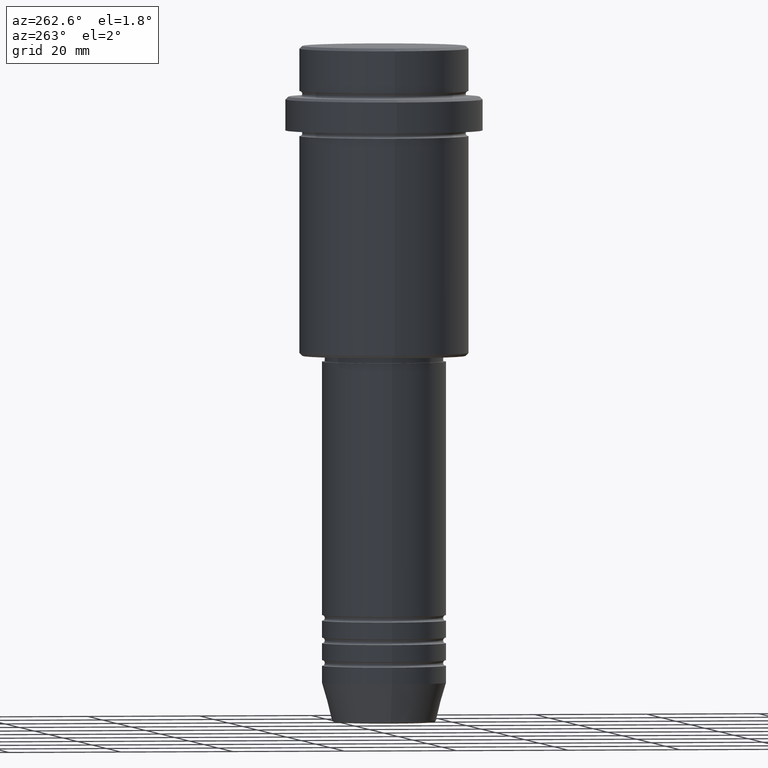
[diagram: clean part render]
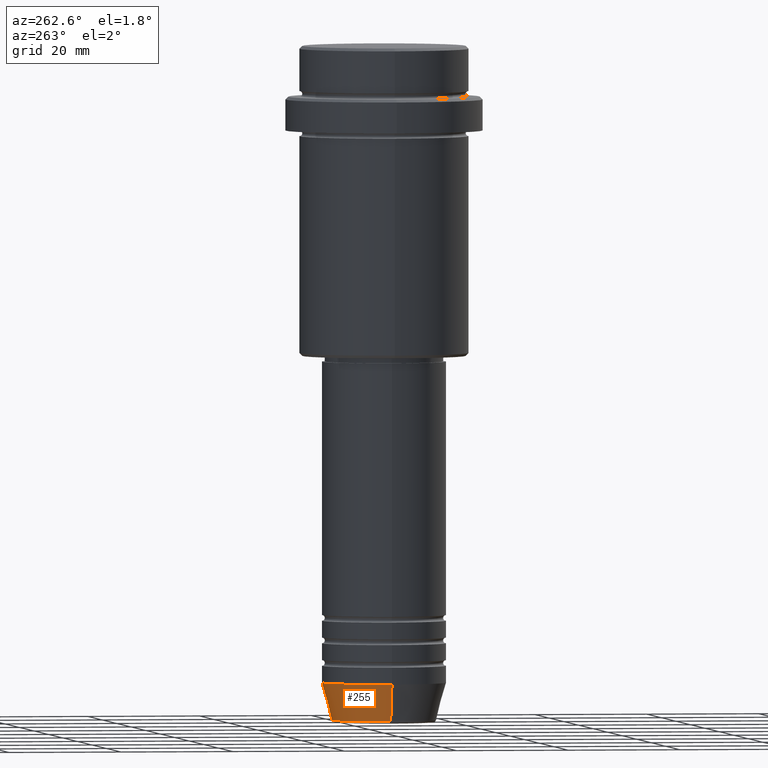
[diagram: same view with one face highlighted and labeled with its STEP entity id]
A machine part, auxiliary view. The second image highlights one B-rep face of the part: STEP entity #255.
In plain terms, the highlighted conical surface has half-angle 15 deg.
Its self-contained STEP definition (entity closure, byte-faithful):
#6 = DIRECTION ( 'NONE',  ( 0.2588190451025213501, 0.000000000000000000, 0.9659258262890680902 ) ) ;
#9 = ORIENTED_EDGE ( 'NONE', *, *, #1183, .F. ) ;
#42 = EDGE_CURVE ( 'NONE', #180, #549, #1190, .T. ) ;
#82 = EDGE_LOOP ( 'NONE', ( #1201, #1222, #9, #689 ) ) ;
#172 = CARTESIAN_POINT ( 'NONE',  ( 11.00000000000000000, 0.000000000000000000, -113.0000000000000000 ) ) ;
#180 = VERTEX_POINT ( 'NONE', #752 ) ;
#206 = CARTESIAN_POINT ( 'NONE',  ( 11.00000000000000000, 0.000000000000000000, -113.0000000000000000 ) ) ;
#231 = DIRECTION ( 'NONE',  ( -0.000000000000000000, -0.000000000000000000, 1.000000000000000000 ) ) ;
#255 = ADVANCED_FACE ( 'NONE', ( #883 ), #318, .T. ) ;
#282 = DIRECTION ( 'NONE',  ( -0.2588190451025213501, 3.169619151431772337E-17, 0.9659258262890680902 ) ) ;
#285 = CARTESIAN_POINT ( 'NONE',  ( 0.000000000000000000, 0.000000000000000000, -113.0000000000000000 ) ) ;
#313 = CARTESIAN_POINT ( 'NONE',  ( 0.000000000000000000, 0.000000000000000000, -119.6294095225512422 ) ) ;
#318 = CONICAL_SURFACE ( 'NONE', #1038, 11.00000000000000000, 0.2617993877991500740 ) ;
#427 = CARTESIAN_POINT ( 'NONE',  ( -9.223655072137194821, 1.238341722557647399E-15, -119.6294095225512422 ) ) ;
#450 = DIRECTION ( 'NONE',  ( 1.000000000000000000, 0.000000000000000000, 0.000000000000000000 ) ) ;
#462 = VERTEX_POINT ( 'NONE', #427 ) ;
#480 = AXIS2_PLACEMENT_3D ( 'NONE', #285, #952, #1384 ) ;
#509 = CARTESIAN_POINT ( 'NONE',  ( -11.00000000000000000, 1.347111479062088405E-15, -113.0000000000000000 ) ) ;
#524 = EDGE_CURVE ( 'NONE', #180, #462, #640, .T. ) ;
#549 = VERTEX_POINT ( 'NONE', #172 ) ;
#595 = CARTESIAN_POINT ( 'NONE',  ( -11.00000000000000000, 1.347111479062088405E-15, -113.0000000000000000 ) ) ;
#640 = CIRCLE ( 'NONE', #1231, 9.223655072137194821 ) ;
#689 = ORIENTED_EDGE ( 'NONE', *, *, #42, .F. ) ;
#745 = VECTOR ( 'NONE', #6, 1000.000000000000000 ) ;
#752 = CARTESIAN_POINT ( 'NONE',  ( 9.223655072137194821, 0.000000000000000000, -119.6294095225512422 ) ) ;
#883 = FACE_OUTER_BOUND ( 'NONE', #82, .T. ) ;
#952 = DIRECTION ( 'NONE',  ( -0.000000000000000000, -0.000000000000000000, 1.000000000000000000 ) ) ;
#984 = DIRECTION ( 'NONE',  ( -0.000000000000000000, -0.000000000000000000, 1.000000000000000000 ) ) ;
#1038 = AXIS2_PLACEMENT_3D ( 'NONE', #1088, #984, #450 ) ;
#1043 = VECTOR ( 'NONE', #282, 1000.000000000000000 ) ;
#1088 = CARTESIAN_POINT ( 'NONE',  ( 0.000000000000000000, 0.000000000000000000, -113.0000000000000000 ) ) ;
#1102 = EDGE_CURVE ( 'NONE', #462, #1287, #1132, .T. ) ;
#1132 = LINE ( 'NONE', #595, #1043 ) ;
#1154 = CIRCLE ( 'NONE', #480, 11.00000000000000000 ) ;
#1183 = EDGE_CURVE ( 'NONE', #549, #1287, #1154, .T. ) ;
#1190 = LINE ( 'NONE', #206, #745 ) ;
#1201 = ORIENTED_EDGE ( 'NONE', *, *, #524, .T. ) ;
#1222 = ORIENTED_EDGE ( 'NONE', *, *, #1102, .T. ) ;
#1231 = AXIS2_PLACEMENT_3D ( 'NONE', #313, #231, #1331 ) ;
#1287 = VERTEX_POINT ( 'NONE', #509 ) ;
#1331 = DIRECTION ( 'NONE',  ( 1.000000000000000000, 0.000000000000000000, 0.000000000000000000 ) ) ;
#1384 = DIRECTION ( 'NONE',  ( 1.000000000000000000, 0.000000000000000000, 0.000000000000000000 ) ) ;